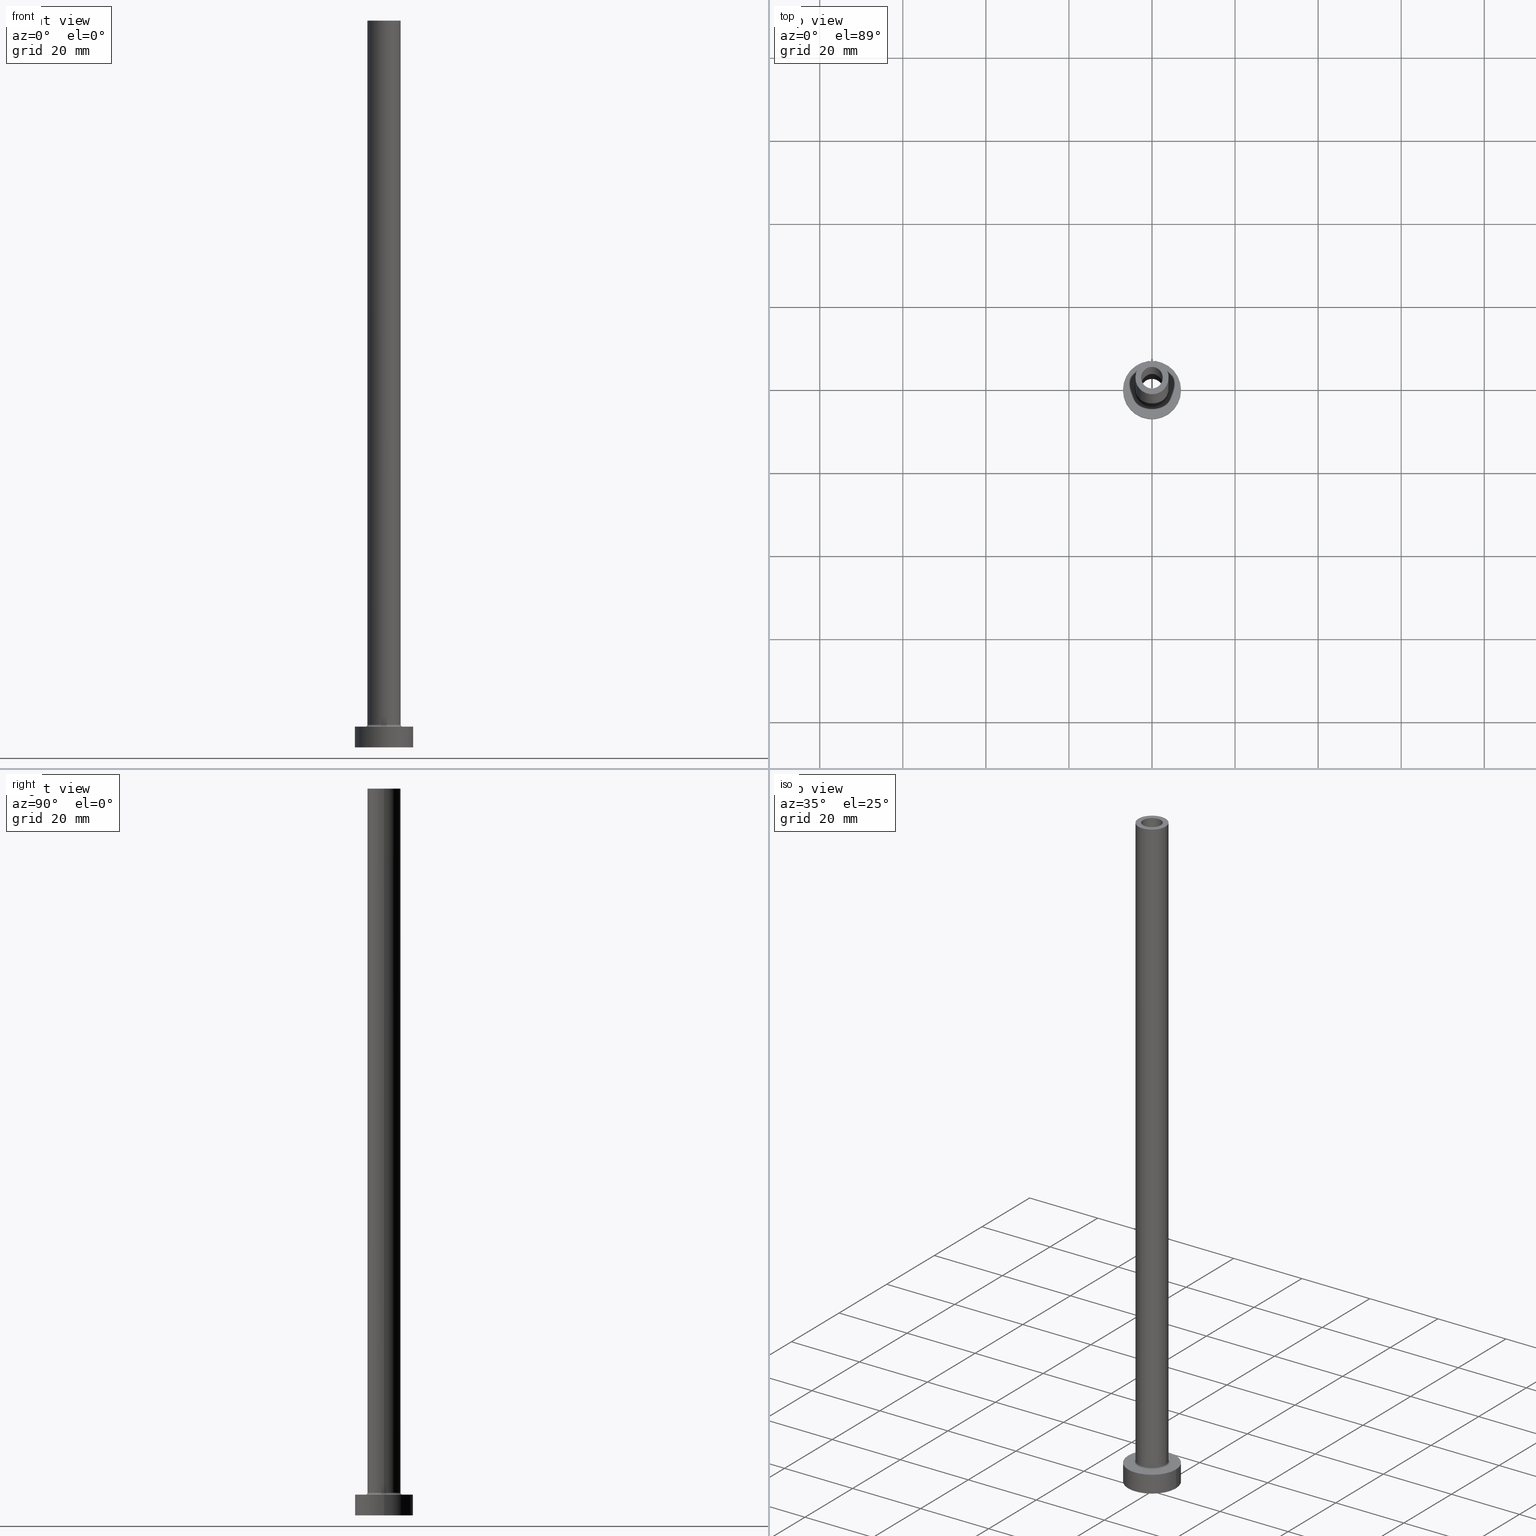
[diagram: canonical four-view strip — front | top / right | iso, engineering-drawing reading convention]
A machine part, canonical four-view strip (front | top / right | iso — engineering-drawing reading convention). The complete STEP part file that produces these views, byte-faithful:
ISO-10303-21;
HEADER;
FILE_DESCRIPTION (( 'STEP AP203' ),
    '1' );
FILE_NAME ('861e.STEP',
    '2023-02-13T10:11:23',
    ( '' ),
    ( '' ),
    'SwSTEP 2.0',
    'SolidWorks 2019',
    '' );
FILE_SCHEMA (( 'CONFIG_CONTROL_DESIGN' ));
ENDSEC;

DATA;
#1 = DIRECTION ( 'NONE',  ( 0.000000000000000000, 0.000000000000000000, -1.000000000000000000 ) ) ;
#2 = ADVANCED_FACE ( 'NONE', ( #11 ), #123, .T. ) ;
#3 = EDGE_LOOP ( 'NONE', ( #299, #56, #166, #332 ) ) ;
#4 = CARTESIAN_POINT ( 'NONE',  ( 4.000000000000000000, 4.898587196589412829E-16, 175.0000000000000284 ) ) ;
#5 = TOROIDAL_SURFACE ( 'NONE', #305, 4.500000000000000888, 0.5000000000000000000 ) ;
#6 = ORIENTED_EDGE ( 'NONE', *, *, #458, .T. ) ;
#7 = DIRECTION ( 'NONE',  ( 0.000000000000000000, 0.000000000000000000, 1.000000000000000000 ) ) ;
#8 = ORIENTED_EDGE ( 'NONE', *, *, #194, .T. ) ;
#9 = EDGE_CURVE ( 'NONE', #103, #228, #215, .T. ) ;
#10 = CARTESIAN_POINT ( 'NONE',  ( 0.000000000000000000, 0.000000000000000000, 5.000000000000000000 ) ) ;
#11 = FACE_OUTER_BOUND ( 'NONE', #432, .T. ) ;
#12 = VECTOR ( 'NONE', #369, 1000.000000000000000 ) ;
#13 = ORIENTED_EDGE ( 'NONE', *, *, #67, .T. ) ;
#14 = FACE_OUTER_BOUND ( 'NONE', #3, .T. ) ;
#15 = CYLINDRICAL_SURFACE ( 'NONE', #248, 2.750000000000000000 ) ;
#16 = ADVANCED_FACE ( 'NONE', ( #384 ), #5, .F. ) ;
#17 = APPROVAL_PERSON_ORGANIZATION ( #311, #268, #205 ) ;
#18 = CARTESIAN_POINT ( 'NONE',  ( -2.600000000000000089, 0.000000000000000000, 175.0000000000000284 ) ) ;
#19 = CARTESIAN_POINT ( 'NONE',  ( 0.000000000000000000, 0.000000000000000000, 130.0000000000000000 ) ) ;
#20 = DIRECTION ( 'NONE',  ( 1.224646799147353207E-16, 1.000000000000000000, -0.000000000000000000 ) ) ;
#21 = EDGE_CURVE ( 'NONE', #85, #201, #270, .T. ) ;
#22 = APPROVAL_STATUS ( 'not_yet_approved' ) ;
#23 = VERTEX_POINT ( 'NONE', #442 ) ;
#24 = CIRCLE ( 'NONE', #459, 2.750000000000000000 ) ;
#25 = AXIS2_PLACEMENT_3D ( 'NONE', #261, #330, #117 ) ;
#26 = DIRECTION ( 'NONE',  ( 0.000000000000000000, 0.000000000000000000, 1.000000000000000000 ) ) ;
#27 = ORIENTED_EDGE ( 'NONE', *, *, #185, .F. ) ;
#28 = PERSON_AND_ORGANIZATION_ROLE ( 'design_owner' ) ;
#29 = DIRECTION ( 'NONE',  ( 1.000000000000000000, 0.000000000000000000, 0.000000000000000000 ) ) ;
#30 = EDGE_CURVE ( 'NONE', #228, #23, #320, .T. ) ;
#31 = APPLICATION_PROTOCOL_DEFINITION ( 'international standard', 'config_control_design', 1994, #186 ) ;
#32 = DIRECTION ( 'NONE',  ( 1.000000000000000000, 0.000000000000000000, 0.000000000000000000 ) ) ;
#33 = AXIS2_PLACEMENT_3D ( 'NONE', #366, #264, #125 ) ;
#34 = ORIENTED_EDGE ( 'NONE', *, *, #218, .F. ) ;
#35 = CC_DESIGN_PERSON_AND_ORGANIZATION_ASSIGNMENT ( #317, #28, ( #60 ) ) ;
#36 = DIRECTION ( 'NONE',  ( 0.000000000000000000, 0.000000000000000000, 1.000000000000000000 ) ) ;
#37 = VERTEX_POINT ( 'NONE', #139 ) ;
#38 = FACE_OUTER_BOUND ( 'NONE', #208, .T. ) ;
#39 = VERTEX_POINT ( 'NONE', #137 ) ;
#40 = CARTESIAN_POINT ( 'NONE',  ( 0.000000000000000000, 0.000000000000000000, 0.000000000000000000 ) ) ;
#41 = CC_DESIGN_PERSON_AND_ORGANIZATION_ASSIGNMENT ( #344, #244, ( #393 ) ) ;
#42 = AXIS2_PLACEMENT_3D ( 'NONE', #64, #55, #271 ) ;
#43 = VECTOR ( 'NONE', #437, 1000.000000000000000 ) ;
#44 = FACE_OUTER_BOUND ( 'NONE', #388, .T. ) ;
#45 = LOCAL_TIME ( 11, 11, 23.00000000000000000, #132 ) ;
#46 = CARTESIAN_POINT ( 'NONE',  ( 0.000000000000000000, 0.000000000000000000, 130.0000000000000000 ) ) ;
#47 = ORIENTED_EDGE ( 'NONE', *, *, #9, .T. ) ;
#48 = FACE_OUTER_BOUND ( 'NONE', #80, .T. ) ;
#49 = CIRCLE ( 'NONE', #180, 7.000000000000000000 ) ;
#50 = ORIENTED_EDGE ( 'NONE', *, *, #433, .F. ) ;
#51 = EDGE_CURVE ( 'NONE', #225, #85, #231, .T. ) ;
#52 = DIRECTION ( 'NONE',  ( -0.000000000000000000, -0.000000000000000000, -1.000000000000000000 ) ) ;
#53 = CARTESIAN_POINT ( 'NONE',  ( -4.000000000000000000, 0.000000000000000000, 175.0000000000000284 ) ) ;
#54 = CARTESIAN_POINT ( 'NONE',  ( 0.000000000000000000, 0.000000000000000000, 5.000000000000000000 ) ) ;
#55 = DIRECTION ( 'NONE',  ( -0.000000000000000000, -0.000000000000000000, -1.000000000000000000 ) ) ;
#56 = ORIENTED_EDGE ( 'NONE', *, *, #250, .T. ) ;
#57 = DIRECTION ( 'NONE',  ( 0.000000000000000000, 0.000000000000000000, 1.000000000000000000 ) ) ;
#58 = CC_DESIGN_DATE_AND_TIME_ASSIGNMENT ( #207, #63, ( #393 ) ) ;
#59 = EDGE_LOOP ( 'NONE', ( #50, #65 ) ) ;
#60 = PRODUCT ( '861e', '861e', '', ( #100 ) ) ;
#61 = COORDINATED_UNIVERSAL_TIME_OFFSET ( 1, 0, .AHEAD. ) ;
#62 = ORIENTED_EDGE ( 'NONE', *, *, #451, .T. ) ;
#63 = DATE_TIME_ROLE ( 'classification_date' ) ;
#64 = CARTESIAN_POINT ( 'NONE',  ( 0.000000000000000000, 0.000000000000000000, 5.000000000000000000 ) ) ;
#65 = ORIENTED_EDGE ( 'NONE', *, *, #67, .F. ) ;
#66 = COORDINATED_UNIVERSAL_TIME_OFFSET ( 1, 0, .AHEAD. ) ;
#67 = EDGE_CURVE ( 'NONE', #70, #345, #452, .T. ) ;
#68 = AXIS2_PLACEMENT_3D ( 'NONE', #162, #300, #86 ) ;
#69 = CARTESIAN_POINT ( 'NONE',  ( 0.000000000000000000, 0.000000000000000000, 5.500000000000005329 ) ) ;
#70 = VERTEX_POINT ( 'NONE', #197 ) ;
#71 = APPROVAL_STATUS ( 'not_yet_approved' ) ;
#72 = FACE_OUTER_BOUND ( 'NONE', #454, .T. ) ;
#73 = AXIS2_PLACEMENT_3D ( 'NONE', #46, #198, #368 ) ;
#74 = ORIENTED_EDGE ( 'NONE', *, *, #308, .T. ) ;
#75 = CARTESIAN_POINT ( 'NONE',  ( -2.600000000000000089, 0.000000000000000000, 175.0000000000000284 ) ) ;
#76 = ORIENTED_EDGE ( 'NONE', *, *, #224, .T. ) ;
#77 = TOROIDAL_SURFACE ( 'NONE', #436, 4.500000000000000888, 0.5000000000000000000 ) ;
#78 = PLANE ( 'NONE',  #113 ) ;
#79 = DIRECTION ( 'NONE',  ( -0.000000000000000000, -0.000000000000000000, -1.000000000000000000 ) ) ;
#80 = EDGE_LOOP ( 'NONE', ( #238, #419 ) ) ;
#81 = LOCAL_TIME ( 11, 11, 23.00000000000000000, #61 ) ;
#82 = DIRECTION ( 'NONE',  ( -0.000000000000000000, -0.000000000000000000, -1.000000000000000000 ) ) ;
#83 = LINE ( 'NONE', #75, #216 ) ;
#84 = ADVANCED_FACE ( 'NONE', ( #130 ), #335, .F. ) ;
#85 = VERTEX_POINT ( 'NONE', #408 ) ;
#86 = DIRECTION ( 'NONE',  ( -1.000000000000000000, 0.000000000000000000, 0.000000000000000000 ) ) ;
#87 = DIRECTION ( 'NONE',  ( 0.000000000000000000, 0.000000000000000000, 1.000000000000000000 ) ) ;
#88 = AXIS2_PLACEMENT_3D ( 'NONE', #410, #97, #169 ) ;
#89 = DIRECTION ( 'NONE',  ( -1.000000000000000000, 1.224646799147351482E-16, 0.000000000000000000 ) ) ;
#90 = ADVANCED_FACE ( 'NONE', ( #161, #234 ), #386, .F. ) ;
#91 = ORIENTED_EDGE ( 'NONE', *, *, #199, .F. ) ;
#92 = FACE_OUTER_BOUND ( 'NONE', #303, .T. ) ;
#93 = CARTESIAN_POINT ( 'NONE',  ( -2.750000000000000000, 0.000000000000000000, 137.7781745930520287 ) ) ;
#94 = ORIENTED_EDGE ( 'NONE', *, *, #379, .T. ) ;
#95 = CARTESIAN_POINT ( 'NONE',  ( 0.000000000000000000, 0.000000000000000000, 130.0000000000000000 ) ) ;
#96 = ORIENTED_EDGE ( 'NONE', *, *, #141, .T. ) ;
#97 = DIRECTION ( 'NONE',  ( 0.000000000000000000, 0.000000000000000000, 1.000000000000000000 ) ) ;
#98 = CIRCLE ( 'NONE', #155, 7.000000000000000000 ) ;
#99 = AXIS2_PLACEMENT_3D ( 'NONE', #10, #292, #221 ) ;
#100 = MECHANICAL_CONTEXT ( 'NONE', #341, 'mechanical' ) ;
#101 = ORIENTED_EDGE ( 'NONE', *, *, #288, .F. ) ;
#102 = DIRECTION ( 'NONE',  ( 0.000000000000000000, 0.000000000000000000, 1.000000000000000000 ) ) ;
#103 = VERTEX_POINT ( 'NONE', #282 ) ;
#104 = APPROVAL_DATE_TIME ( #136, #173 ) ;
#105 = DIRECTION ( 'NONE',  ( -1.000000000000000000, 0.000000000000000000, 0.000000000000000000 ) ) ;
#106 = ORIENTED_EDGE ( 'NONE', *, *, #141, .F. ) ;
#107 = CIRCLE ( 'NONE', #427, 2.600000000000000089 ) ;
#108 = CARTESIAN_POINT ( 'NONE',  ( 0.000000000000000000, 0.000000000000000000, 137.7781745930520287 ) ) ;
#109 = DIRECTION ( 'NONE',  ( 1.000000000000000000, 0.000000000000000000, 0.000000000000000000 ) ) ;
#110 = ADVANCED_FACE ( 'NONE', ( #72 ), #302, .F. ) ;
#111 = CARTESIAN_POINT ( 'NONE',  ( 4.000000000000000000, 4.898587196589412829E-16, 5.500000000000005329 ) ) ;
#112 = VERTEX_POINT ( 'NONE', #245 ) ;
#113 = AXIS2_PLACEMENT_3D ( 'NONE', #181, #7, #254 ) ;
#114 = CARTESIAN_POINT ( 'NONE',  ( -2.600000000000000089, 0.000000000000000000, 130.0000000000000000 ) ) ;
#115 = AXIS2_PLACEMENT_3D ( 'NONE', #431, #192, #237 ) ;
#116 = ORIENTED_EDGE ( 'NONE', *, *, #30, .T. ) ;
#117 = DIRECTION ( 'NONE',  ( 1.000000000000000000, 0.000000000000000000, 0.000000000000000000 ) ) ;
#118 = EDGE_CURVE ( 'NONE', #260, #39, #285, .T. ) ;
#119 = DIRECTION ( 'NONE',  ( 0.000000000000000000, 0.000000000000000000, -1.000000000000000000 ) ) ;
#120 = CARTESIAN_POINT ( 'NONE',  ( 0.000000000000000000, 0.000000000000000000, 175.0000000000000284 ) ) ;
#121 = DESIGN_CONTEXT ( 'detailed design', #186, 'design' ) ;
#122 = CIRCLE ( 'NONE', #362, 4.000000000000000000 ) ;
#123 = CYLINDRICAL_SURFACE ( 'NONE', #33, 4.000000000000000000 ) ;
#124 = EDGE_CURVE ( 'NONE', #103, #375, #404, .T. ) ;
#125 = DIRECTION ( 'NONE',  ( -1.000000000000000000, 0.000000000000000000, 0.000000000000000000 ) ) ;
#126 = DIRECTION ( 'NONE',  ( 1.000000000000000000, 0.000000000000000000, 0.000000000000000000 ) ) ;
#127 = DIRECTION ( 'NONE',  ( -1.000000000000000000, 0.000000000000000000, 0.000000000000000000 ) ) ;
#128 = DIRECTION ( 'NONE',  ( 0.000000000000000000, 0.000000000000000000, -1.000000000000000000 ) ) ;
#129 = FACE_OUTER_BOUND ( 'NONE', #396, .T. ) ;
#130 = FACE_OUTER_BOUND ( 'NONE', #409, .T. ) ;
#131 = APPROVAL_ROLE ( '' ) ;
#132 = COORDINATED_UNIVERSAL_TIME_OFFSET ( 1, 0, .AHEAD. ) ;
#133 = EDGE_LOOP ( 'NONE', ( #312, #294, #212, #8 ) ) ;
#134 = PERSON_AND_ORGANIZATION ( #293, #343 ) ;
#135 = EDGE_CURVE ( 'NONE', #151, #171, #49, .T. ) ;
#136 = DATE_AND_TIME ( #276, #45 ) ;
#137 = CARTESIAN_POINT ( 'NONE',  ( 4.500000000000000888, 0.000000000000000000, 5.000000000000002665 ) ) ;
#138 = CIRCLE ( 'NONE', #73, 2.600000000000000089 ) ;
#139 = CARTESIAN_POINT ( 'NONE',  ( 4.000000000000000000, 4.898587196589412829E-16, 175.0000000000000284 ) ) ;
#140 = ORIENTED_EDGE ( 'NONE', *, *, #199, .T. ) ;
#141 = EDGE_CURVE ( 'NONE', #159, #112, #107, .T. ) ;
#142 = AXIS2_PLACEMENT_3D ( 'NONE', #307, #446, #273 ) ;
#143 = DIRECTION ( 'NONE',  ( 1.000000000000000000, 0.000000000000000000, 0.000000000000000000 ) ) ;
#144 = ORIENTED_EDGE ( 'NONE', *, *, #352, .T. ) ;
#145 = DIRECTION ( 'NONE',  ( 1.000000000000000000, 0.000000000000000000, 0.000000000000000000 ) ) ;
#146 = APPROVAL_PERSON_ORGANIZATION ( #349, #173, #376 ) ;
#147 = DIRECTION ( 'NONE',  ( -1.000000000000000000, 0.000000000000000000, 0.000000000000000000 ) ) ;
#148 = CARTESIAN_POINT ( 'NONE',  ( 0.000000000000000000, 0.000000000000000000, 5.500000000000005329 ) ) ;
#149 = EDGE_CURVE ( 'NONE', #267, #325, #361, .T. ) ;
#150 = CARTESIAN_POINT ( 'NONE',  ( 7.000000000000000000, 8.572527594031473190E-16, 5.000000000000000000 ) ) ;
#151 = VERTEX_POINT ( 'NONE', #347 ) ;
#152 = CC_DESIGN_APPROVAL ( #173, ( #281 ) ) ;
#153 = ADVANCED_FACE ( 'NONE', ( #44 ), #77, .F. ) ;
#154 = CARTESIAN_POINT ( 'NONE',  ( 0.000000000000000000, 0.000000000000000000, 175.0000000000000284 ) ) ;
#155 = AXIS2_PLACEMENT_3D ( 'NONE', #357, #222, #430 ) ;
#156 = AXIS2_PLACEMENT_3D ( 'NONE', #269, #403, #126 ) ;
#157 = ORIENTED_EDGE ( 'NONE', *, *, #51, .T. ) ;
#158 = CYLINDRICAL_SURFACE ( 'NONE', #68, 7.000000000000000000 ) ;
#159 = VERTEX_POINT ( 'NONE', #114 ) ;
#160 = DIRECTION ( 'NONE',  ( 0.000000000000000000, 0.000000000000000000, 1.000000000000000000 ) ) ;
#161 = FACE_BOUND ( 'NONE', #425, .T. ) ;
#162 = CARTESIAN_POINT ( 'NONE',  ( 0.000000000000000000, 0.000000000000000000, 5.000000000000000000 ) ) ;
#163 = CIRCLE ( 'NONE', #240, 4.000000000000000000 ) ;
#164 = DIRECTION ( 'NONE',  ( 1.000000000000000000, 0.000000000000000000, 0.000000000000000000 ) ) ;
#165 = PRODUCT_RELATED_PRODUCT_CATEGORY ( 'detail', '', ( #60 ) ) ;
#166 = ORIENTED_EDGE ( 'NONE', *, *, #124, .T. ) ;
#167 = CARTESIAN_POINT ( 'NONE',  ( -7.000000000000000000, 0.000000000000000000, 5.000000000000000000 ) ) ;
#168 = ORIENTED_EDGE ( 'NONE', *, *, #458, .F. ) ;
#169 = DIRECTION ( 'NONE',  ( 1.000000000000000000, 0.000000000000000000, 0.000000000000000000 ) ) ;
#170 = LOCAL_TIME ( 11, 11, 23.00000000000000000, #457 ) ;
#171 = VERTEX_POINT ( 'NONE', #189 ) ;
#172 = APPLICATION_PROTOCOL_DEFINITION ( 'international standard', 'config_control_design', 1994, #341 ) ;
#173 = APPROVAL ( #22, 'NEUR�EN�' ) ;
#174 = AXIS2_PLACEMENT_3D ( 'NONE', #95, #160, #441 ) ;
#175 = DIRECTION ( 'NONE',  ( 1.000000000000000000, 0.000000000000000000, 0.000000000000000000 ) ) ;
#176 = PERSON_AND_ORGANIZATION_ROLE ( 'creator' ) ;
#177 = CARTESIAN_POINT ( 'NONE',  ( 2.750000000000000000, 3.367778697655221012E-16, 137.7781745930520287 ) ) ;
#178 = CC_DESIGN_PERSON_AND_ORGANIZATION_ASSIGNMENT ( #310, #378, ( #281 ) ) ;
#179 = DIRECTION ( 'NONE',  ( 1.000000000000000000, 0.000000000000000000, -0.000000000000000000 ) ) ;
#180 = AXIS2_PLACEMENT_3D ( 'NONE', #371, #200, #382 ) ;
#181 = CARTESIAN_POINT ( 'NONE',  ( 0.000000000000000000, 0.000000000000000000, 175.0000000000000284 ) ) ;
#182 = ORIENTED_EDGE ( 'NONE', *, *, #428, .F. ) ;
#183 = CARTESIAN_POINT ( 'NONE',  ( -4.000000000000000000, 0.000000000000000000, 175.0000000000000284 ) ) ;
#184 = DIRECTION ( 'NONE',  ( 1.000000000000000000, 0.000000000000000000, 0.000000000000000000 ) ) ;
#185 = EDGE_CURVE ( 'NONE', #201, #85, #163, .T. ) ;
#186 = APPLICATION_CONTEXT ( 'configuration controlled 3d designs of mechanical parts and assemblies' ) ;
#187 = AXIS2_PLACEMENT_3D ( 'NONE', #69, #286, #175 ) ;
#188 = ADVANCED_BREP_SHAPE_REPRESENTATION ( '861e', ( #420, #88 ), #449 ) ;
#189 = CARTESIAN_POINT ( 'NONE',  ( -7.000000000000000000, 0.000000000000000000, 0.000000000000000000 ) ) ;
#190 = CIRCLE ( 'NONE', #204, 0.5000000000000004441 ) ;
#191 = ORIENTED_EDGE ( 'NONE', *, *, #21, .T. ) ;
#192 = DIRECTION ( 'NONE',  ( 0.000000000000000000, 0.000000000000000000, 1.000000000000000000 ) ) ;
#193 = ORIENTED_EDGE ( 'NONE', *, *, #149, .T. ) ;
#194 = EDGE_CURVE ( 'NONE', #171, #151, #314, .T. ) ;
#195 = ORIENTED_EDGE ( 'NONE', *, *, #218, .T. ) ;
#196 = CARTESIAN_POINT ( 'NONE',  ( 7.000000000000000000, 8.572527594031473190E-16, 5.000000000000000000 ) ) ;
#197 = CARTESIAN_POINT ( 'NONE',  ( 2.600000000000000089, 3.184081677783118191E-16, 175.0000000000000284 ) ) ;
#198 = DIRECTION ( 'NONE',  ( 0.000000000000000000, 0.000000000000000000, 1.000000000000000000 ) ) ;
#199 = EDGE_CURVE ( 'NONE', #325, #267, #98, .T. ) ;
#200 = DIRECTION ( 'NONE',  ( 0.000000000000000000, 0.000000000000000000, 1.000000000000000000 ) ) ;
#201 = VERTEX_POINT ( 'NONE', #111 ) ;
#202 = CARTESIAN_POINT ( 'NONE',  ( 4.500000000000000888, 0.000000000000000000, 5.500000000000005329 ) ) ;
#203 = CIRCLE ( 'NONE', #411, 2.750000000000000000 ) ;
#204 = AXIS2_PLACEMENT_3D ( 'NONE', #434, #20, #89 ) ;
#205 = APPROVAL_ROLE ( '' ) ;
#206 = ADVANCED_FACE ( 'NONE', ( #327, #395 ), #78, .T. ) ;
#207 = DATE_AND_TIME ( #280, #81 ) ;
#208 = EDGE_LOOP ( 'NONE', ( #91, #402, #444, #438 ) ) ;
#209 = DIRECTION ( 'NONE',  ( 0.000000000000000000, 0.000000000000000000, -1.000000000000000000 ) ) ;
#210 = AXIS2_PLACEMENT_3D ( 'NONE', #399, #87, #29 ) ;
#211 = DIRECTION ( 'NONE',  ( 0.000000000000000000, 0.000000000000000000, 1.000000000000000000 ) ) ;
#212 = ORIENTED_EDGE ( 'NONE', *, *, #387, .T. ) ;
#213 = CARTESIAN_POINT ( 'NONE',  ( 0.000000000000000000, 0.000000000000000000, 175.0000000000000284 ) ) ;
#214 = DIRECTION ( 'NONE',  ( 0.000000000000000000, 0.000000000000000000, 1.000000000000000000 ) ) ;
#215 = CIRCLE ( 'NONE', #210, 2.750000000000000000 ) ;
#216 = VECTOR ( 'NONE', #119, 1000.000000000000000 ) ;
#217 = DIRECTION ( 'NONE',  ( 1.000000000000000000, 0.000000000000000000, 0.000000000000000000 ) ) ;
#218 = EDGE_CURVE ( 'NONE', #23, #375, #203, .T. ) ;
#219 = FACE_OUTER_BOUND ( 'NONE', #279, .T. ) ;
#220 = CIRCLE ( 'NONE', #380, 0.5000000000000004441 ) ;
#221 = DIRECTION ( 'NONE',  ( -1.000000000000000000, 0.000000000000000000, 0.000000000000000000 ) ) ;
#222 = DIRECTION ( 'NONE',  ( 0.000000000000000000, 0.000000000000000000, 1.000000000000000000 ) ) ;
#223 = CIRCLE ( 'NONE', #156, 2.600000000000000089 ) ;
#224 = EDGE_CURVE ( 'NONE', #37, #201, #354, .T. ) ;
#225 = VERTEX_POINT ( 'NONE', #183 ) ;
#226 = PLANE ( 'NONE',  #322 ) ;
#227 = CARTESIAN_POINT ( 'NONE',  ( 0.000000000000000000, 0.000000000000000000, 137.7781745930520287 ) ) ;
#228 = VERTEX_POINT ( 'NONE', #324 ) ;
#229 =( NAMED_UNIT ( * ) SI_UNIT ( $, .STERADIAN. ) SOLID_ANGLE_UNIT ( ) );
#230 = VECTOR ( 'NONE', #82, 1000.000000000000000 ) ;
#231 = LINE ( 'NONE', #53, #12 ) ;
#232 = EDGE_CURVE ( 'NONE', #375, #23, #24, .T. ) ;
#233 = PLANE ( 'NONE',  #174 ) ;
#234 = FACE_OUTER_BOUND ( 'NONE', #309, .T. ) ;
#235 = ORIENTED_EDGE ( 'NONE', *, *, #328, .T. ) ;
#236 = LOCAL_TIME ( 11, 11, 23.00000000000000000, #66 ) ;
#237 = DIRECTION ( 'NONE',  ( 1.000000000000000000, 0.000000000000000000, 0.000000000000000000 ) ) ;
#238 = ORIENTED_EDGE ( 'NONE', *, *, #9, .F. ) ;
#239 = APPROVAL_DATE_TIME ( #313, #268 ) ;
#240 = AXIS2_PLACEMENT_3D ( 'NONE', #148, #36, #363 ) ;
#241 = AXIS2_PLACEMENT_3D ( 'NONE', #252, #1, #147 ) ;
#242 = PERSON_AND_ORGANIZATION_ROLE ( 'creator' ) ;
#243 = DIRECTION ( 'NONE',  ( 1.000000000000000000, 0.000000000000000000, 0.000000000000000000 ) ) ;
#244 = PERSON_AND_ORGANIZATION_ROLE ( 'classification_officer' ) ;
#245 = CARTESIAN_POINT ( 'NONE',  ( 2.600000000000000089, 3.184081677783118191E-16, 130.0000000000000000 ) ) ;
#246 = AXIS2_PLACEMENT_3D ( 'NONE', #284, #102, #179 ) ;
#247 = ORIENTED_EDGE ( 'NONE', *, *, #308, .F. ) ;
#248 = AXIS2_PLACEMENT_3D ( 'NONE', #227, #373, #298 ) ;
#249 = APPROVAL_STATUS ( 'not_yet_approved' ) ;
#250 = EDGE_CURVE ( 'NONE', #228, #103, #263, .T. ) ;
#251 = DIRECTION ( 'NONE',  ( 0.000000000000000000, 0.000000000000000000, -1.000000000000000000 ) ) ;
#252 = CARTESIAN_POINT ( 'NONE',  ( 0.000000000000000000, 0.000000000000000000, 175.0000000000000284 ) ) ;
#253 = CC_DESIGN_APPROVAL ( #268, ( #255 ) ) ;
#254 = DIRECTION ( 'NONE',  ( 1.000000000000000000, 0.000000000000000000, -0.000000000000000000 ) ) ;
#255 = PRODUCT_DEFINITION ( 'NEZN�M�', '', #281, #121 ) ;
#256 = ORIENTED_EDGE ( 'NONE', *, *, #135, .F. ) ;
#257 = VECTOR ( 'NONE', #209, 1000.000000000000000 ) ;
#258 = CARTESIAN_POINT ( 'NONE',  ( -7.000000000000000000, 0.000000000000000000, 5.000000000000000000 ) ) ;
#259 = APPROVAL_PERSON_ORGANIZATION ( #134, #421, #131 ) ;
#260 = VERTEX_POINT ( 'NONE', #426 ) ;
#261 = CARTESIAN_POINT ( 'NONE',  ( 0.000000000000000000, 0.000000000000000000, 5.000000000000000000 ) ) ;
#262 = FACE_BOUND ( 'NONE', #348, .T. ) ;
#263 = CIRCLE ( 'NONE', #460, 2.750000000000000000 ) ;
#264 = DIRECTION ( 'NONE',  ( -0.000000000000000000, -0.000000000000000000, -1.000000000000000000 ) ) ;
#265 =( NAMED_UNIT ( * ) PLANE_ANGLE_UNIT ( ) SI_UNIT ( $, .RADIAN. ) );
#266 = DIRECTION ( 'NONE',  ( 0.000000000000000000, 0.000000000000000000, 1.000000000000000000 ) ) ;
#267 = VERTEX_POINT ( 'NONE', #258 ) ;
#268 = APPROVAL ( #71, 'NEUR�EN�' ) ;
#269 = CARTESIAN_POINT ( 'NONE',  ( 0.000000000000000000, 0.000000000000000000, 175.0000000000000284 ) ) ;
#270 = CIRCLE ( 'NONE', #187, 4.000000000000000000 ) ;
#271 = DIRECTION ( 'NONE',  ( 1.000000000000000000, 0.000000000000000000, 0.000000000000000000 ) ) ;
#272 = FACE_BOUND ( 'NONE', #291, .T. ) ;
#273 = DIRECTION ( 'NONE',  ( 1.000000000000000000, 0.000000000000000000, 0.000000000000000000 ) ) ;
#274 = ORIENTED_EDGE ( 'NONE', *, *, #451, .F. ) ;
#275 = DATE_AND_TIME ( #278, #236 ) ;
#276 = CALENDAR_DATE ( 2023, 13, 2 ) ;
#277 = ORIENTED_EDGE ( 'NONE', *, *, #194, .F. ) ;
#278 = CALENDAR_DATE ( 2023, 13, 2 ) ;
#279 = EDGE_LOOP ( 'NONE', ( #391, #94, #106, #247 ) ) ;
#280 = CALENDAR_DATE ( 2023, 13, 2 ) ;
#281 = PRODUCT_DEFINITION_FORMATION_WITH_SPECIFIED_SOURCE ( 'LIBOVOLN�', '', #60, .NOT_KNOWN. ) ;
#282 = CARTESIAN_POINT ( 'NONE',  ( -2.750000000000000000, 0.000000000000000000, 130.0000000000000000 ) ) ;
#283 = ADVANCED_FACE ( 'NONE', ( #219 ), #287, .F. ) ;
#284 = CARTESIAN_POINT ( 'NONE',  ( 0.000000000000000000, 0.000000000000000000, 0.000000000000000000 ) ) ;
#285 = CIRCLE ( 'NONE', #42, 4.500000000000000888 ) ;
#286 = DIRECTION ( 'NONE',  ( 0.000000000000000000, 0.000000000000000000, 1.000000000000000000 ) ) ;
#287 = CYLINDRICAL_SURFACE ( 'NONE', #241, 2.600000000000000089 ) ;
#288 = EDGE_CURVE ( 'NONE', #39, #260, #412, .T. ) ;
#289 = EDGE_LOOP ( 'NONE', ( #338, #27, #62, #415 ) ) ;
#290 = CARTESIAN_POINT ( 'NONE',  ( 0.000000000000000000, 0.000000000000000000, 130.0000000000000000 ) ) ;
#291 = EDGE_LOOP ( 'NONE', ( #96, #6 ) ) ;
#292 = DIRECTION ( 'NONE',  ( -0.000000000000000000, -0.000000000000000000, -1.000000000000000000 ) ) ;
#293 = PERSON ( 'NEUR�EN�', 'NEUR�EN�', 'NEUR�EN�', ('NEUR�EN�'), ('NEUR�EN�'), ('NEUR�EN�') ) ;
#294 = ORIENTED_EDGE ( 'NONE', *, *, #149, .F. ) ;
#295 = CARTESIAN_POINT ( 'NONE',  ( 0.000000000000000000, 0.000000000000000000, 5.500000000000005329 ) ) ;
#296 = UNCERTAINTY_MEASURE_WITH_UNIT (LENGTH_MEASURE( 1.000000000000000082E-05 ), #331, 'distance_accuracy_value', 'NONE');
#297 = CLOSED_SHELL ( 'NONE', ( #283, #84, #153, #333, #319, #346, #443, #90, #2, #206, #16, #367, #406, #110 ) ) ;
#298 = DIRECTION ( 'NONE',  ( -1.000000000000000000, 0.000000000000000000, 0.000000000000000000 ) ) ;
#299 = ORIENTED_EDGE ( 'NONE', *, *, #30, .F. ) ;
#300 = DIRECTION ( 'NONE',  ( -0.000000000000000000, -0.000000000000000000, -1.000000000000000000 ) ) ;
#301 = FACE_OUTER_BOUND ( 'NONE', #133, .T. ) ;
#302 = CYLINDRICAL_SURFACE ( 'NONE', #340, 2.600000000000000089 ) ;
#303 = EDGE_LOOP ( 'NONE', ( #193, #140 ) ) ;
#304 = CARTESIAN_POINT ( 'NONE',  ( -2.750000000000000000, 0.000000000000000000, 0.000000000000000000 ) ) ;
#305 = AXIS2_PLACEMENT_3D ( 'NONE', #350, #423, #143 ) ;
#306 = VECTOR ( 'NONE', #336, 1000.000000000000000 ) ;
#307 = CARTESIAN_POINT ( 'NONE',  ( 0.000000000000000000, 0.000000000000000000, 5.000000000000000000 ) ) ;
#308 = EDGE_CURVE ( 'NONE', #345, #159, #83, .T. ) ;
#309 = EDGE_LOOP ( 'NONE', ( #277, #256 ) ) ;
#310 = PERSON_AND_ORGANIZATION ( #293, #343 ) ;
#311 = PERSON_AND_ORGANIZATION ( #293, #343 ) ;
#312 = ORIENTED_EDGE ( 'NONE', *, *, #337, .F. ) ;
#313 = DATE_AND_TIME ( #450, #440 ) ;
#314 = CIRCLE ( 'NONE', #397, 7.000000000000000000 ) ;
#315 = CIRCLE ( 'NONE', #115, 4.000000000000000000 ) ;
#316 = ORIENTED_EDGE ( 'NONE', *, *, #118, .T. ) ;
#317 = PERSON_AND_ORGANIZATION ( #293, #343 ) ;
#318 = CARTESIAN_POINT ( 'NONE',  ( 0.000000000000000000, 0.000000000000000000, 175.0000000000000284 ) ) ;
#319 = ADVANCED_FACE ( 'NONE', ( #38 ), #326, .T. ) ;
#320 = LINE ( 'NONE', #177, #377 ) ;
#321 = AXIS2_PLACEMENT_3D ( 'NONE', #318, #211, #243 ) ;
#322 = AXIS2_PLACEMENT_3D ( 'NONE', #54, #57, #401 ) ;
#323 = DIRECTION ( 'NONE',  ( 0.000000000000000000, 0.000000000000000000, 1.000000000000000000 ) ) ;
#324 = CARTESIAN_POINT ( 'NONE',  ( 2.750000000000000000, 3.367778697655221012E-16, 130.0000000000000000 ) ) ;
#325 = VERTEX_POINT ( 'NONE', #150 ) ;
#326 = CYLINDRICAL_SURFACE ( 'NONE', #99, 7.000000000000000000 ) ;
#327 = FACE_BOUND ( 'NONE', #59, .T. ) ;
#328 = EDGE_CURVE ( 'NONE', #225, #37, #315, .T. ) ;
#329 = ORIENTED_EDGE ( 'NONE', *, *, #124, .F. ) ;
#330 = DIRECTION ( 'NONE',  ( -0.000000000000000000, -0.000000000000000000, -1.000000000000000000 ) ) ;
#331 =( LENGTH_UNIT ( ) NAMED_UNIT ( * ) SI_UNIT ( .MILLI., .METRE. ) );
#332 = ORIENTED_EDGE ( 'NONE', *, *, #232, .T. ) ;
#333 = ADVANCED_FACE ( 'NONE', ( #129 ), #334, .T. ) ;
#334 = CYLINDRICAL_SURFACE ( 'NONE', #413, 4.000000000000000000 ) ;
#335 = CYLINDRICAL_SURFACE ( 'NONE', #385, 2.750000000000000000 ) ;
#336 = DIRECTION ( 'NONE',  ( -0.000000000000000000, -0.000000000000000000, -1.000000000000000000 ) ) ;
#337 = EDGE_CURVE ( 'NONE', #325, #151, #407, .T. ) ;
#338 = ORIENTED_EDGE ( 'NONE', *, *, #352, .F. ) ;
#339 = DIRECTION ( 'NONE',  ( 0.000000000000000000, -1.000000000000000000, 0.000000000000000000 ) ) ;
#340 = AXIS2_PLACEMENT_3D ( 'NONE', #213, #128, #418 ) ;
#341 = APPLICATION_CONTEXT ( 'configuration controlled 3d designs of mechanical parts and assemblies' ) ;
#342 = COORDINATED_UNIVERSAL_TIME_OFFSET ( 1, 0, .AHEAD. ) ;
#343 = ORGANIZATION ( 'NEUR�EN�', 'NEUR�EN�', '' ) ;
#344 = PERSON_AND_ORGANIZATION ( #293, #343 ) ;
#345 = VERTEX_POINT ( 'NONE', #18 ) ;
#346 = ADVANCED_FACE ( 'NONE', ( #301 ), #158, .T. ) ;
#347 = CARTESIAN_POINT ( 'NONE',  ( 7.000000000000000000, 8.572527594031473190E-16, 0.000000000000000000 ) ) ;
#348 = EDGE_LOOP ( 'NONE', ( #353, #316 ) ) ;
#349 = PERSON_AND_ORGANIZATION ( #293, #343 ) ;
#350 = CARTESIAN_POINT ( 'NONE',  ( 0.000000000000000000, 0.000000000000000000, 5.500000000000005329 ) ) ;
#351 = CALENDAR_DATE ( 2023, 13, 2 ) ;
#352 = EDGE_CURVE ( 'NONE', #85, #260, #190, .T. ) ;
#353 = ORIENTED_EDGE ( 'NONE', *, *, #288, .T. ) ;
#354 = LINE ( 'NONE', #4, #230 ) ;
#355 = ORIENTED_EDGE ( 'NONE', *, *, #51, .F. ) ;
#356 = VECTOR ( 'NONE', #398, 1000.000000000000000 ) ;
#357 = CARTESIAN_POINT ( 'NONE',  ( 0.000000000000000000, 0.000000000000000000, 5.000000000000000000 ) ) ;
#358 = ORIENTED_EDGE ( 'NONE', *, *, #428, .T. ) ;
#359 = CARTESIAN_POINT ( 'NONE',  ( 0.000000000000000000, 0.000000000000000000, 0.000000000000000000 ) ) ;
#360 = CC_DESIGN_PERSON_AND_ORGANIZATION_ASSIGNMENT ( #417, #242, ( #281 ) ) ;
#361 = CIRCLE ( 'NONE', #142, 7.000000000000000000 ) ;
#362 = AXIS2_PLACEMENT_3D ( 'NONE', #120, #266, #370 ) ;
#363 = DIRECTION ( 'NONE',  ( 1.000000000000000000, 0.000000000000000000, 0.000000000000000000 ) ) ;
#364 = ORIENTED_EDGE ( 'NONE', *, *, #224, .F. ) ;
#365 = LINE ( 'NONE', #445, #43 ) ;
#366 = CARTESIAN_POINT ( 'NONE',  ( 0.000000000000000000, 0.000000000000000000, 175.0000000000000284 ) ) ;
#367 = ADVANCED_FACE ( 'NONE', ( #14 ), #15, .F. ) ;
#368 = DIRECTION ( 'NONE',  ( 1.000000000000000000, 0.000000000000000000, 0.000000000000000000 ) ) ;
#369 = DIRECTION ( 'NONE',  ( -0.000000000000000000, -0.000000000000000000, -1.000000000000000000 ) ) ;
#370 = DIRECTION ( 'NONE',  ( 1.000000000000000000, 0.000000000000000000, 0.000000000000000000 ) ) ;
#371 = CARTESIAN_POINT ( 'NONE',  ( 0.000000000000000000, 0.000000000000000000, 0.000000000000000000 ) ) ;
#372 = CC_DESIGN_APPROVAL ( #421, ( #393 ) ) ;
#373 = DIRECTION ( 'NONE',  ( 0.000000000000000000, 0.000000000000000000, -1.000000000000000000 ) ) ;
#374 = CC_DESIGN_DATE_AND_TIME_ASSIGNMENT ( #455, #453, ( #255 ) ) ;
#375 = VERTEX_POINT ( 'NONE', #304 ) ;
#376 = APPROVAL_ROLE ( '' ) ;
#377 = VECTOR ( 'NONE', #424, 1000.000000000000000 ) ;
#378 = PERSON_AND_ORGANIZATION_ROLE ( 'design_supplier' ) ;
#379 = EDGE_CURVE ( 'NONE', #70, #112, #365, .T. ) ;
#380 = AXIS2_PLACEMENT_3D ( 'NONE', #202, #339, #400 ) ;
#381 = PERSON_AND_ORGANIZATION ( #293, #343 ) ;
#382 = DIRECTION ( 'NONE',  ( 1.000000000000000000, 0.000000000000000000, 0.000000000000000000 ) ) ;
#383 = PRODUCT_DEFINITION_SHAPE ( 'NONE', 'NONE',  #255 ) ;
#384 = FACE_OUTER_BOUND ( 'NONE', #289, .T. ) ;
#385 = AXIS2_PLACEMENT_3D ( 'NONE', #108, #251, #105 ) ;
#386 = PLANE ( 'NONE',  #246 ) ;
#387 = EDGE_CURVE ( 'NONE', #267, #171, #439, .T. ) ;
#388 = EDGE_LOOP ( 'NONE', ( #435, #144, #101, #274 ) ) ;
#389 = DIRECTION ( 'NONE',  ( -0.000000000000000000, -0.000000000000000000, -1.000000000000000000 ) ) ;
#390 = CARTESIAN_POINT ( 'NONE',  ( 0.000000000000000000, 0.000000000000000000, 0.000000000000000000 ) ) ;
#391 = ORIENTED_EDGE ( 'NONE', *, *, #433, .T. ) ;
#392 = DIRECTION ( 'NONE',  ( 0.000000000000000000, 0.000000000000000000, 1.000000000000000000 ) ) ;
#393 = SECURITY_CLASSIFICATION ( '', '', #448 ) ;
#394 = ORIENTED_EDGE ( 'NONE', *, *, #379, .F. ) ;
#395 = FACE_OUTER_BOUND ( 'NONE', #429, .T. ) ;
#396 = EDGE_LOOP ( 'NONE', ( #182, #76, #461, #355 ) ) ;
#397 = AXIS2_PLACEMENT_3D ( 'NONE', #359, #392, #145 ) ;
#398 = DIRECTION ( 'NONE',  ( -0.000000000000000000, -0.000000000000000000, -1.000000000000000000 ) ) ;
#399 = CARTESIAN_POINT ( 'NONE',  ( 0.000000000000000000, 0.000000000000000000, 130.0000000000000000 ) ) ;
#400 = DIRECTION ( 'NONE',  ( 0.000000000000000000, 0.000000000000000000, -1.000000000000000000 ) ) ;
#401 = DIRECTION ( 'NONE',  ( 1.000000000000000000, 0.000000000000000000, -0.000000000000000000 ) ) ;
#402 = ORIENTED_EDGE ( 'NONE', *, *, #337, .T. ) ;
#403 = DIRECTION ( 'NONE',  ( 0.000000000000000000, 0.000000000000000000, 1.000000000000000000 ) ) ;
#404 = LINE ( 'NONE', #93, #257 ) ;
#405 = ORIENTED_EDGE ( 'NONE', *, *, #232, .F. ) ;
#406 = ADVANCED_FACE ( 'NONE', ( #272, #48 ), #233, .F. ) ;
#407 = LINE ( 'NONE', #196, #356 ) ;
#408 = CARTESIAN_POINT ( 'NONE',  ( -4.000000000000000000, 0.000000000000000000, 5.500000000000005329 ) ) ;
#409 = EDGE_LOOP ( 'NONE', ( #47, #116, #195, #329 ) ) ;
#410 = CARTESIAN_POINT ( 'NONE',  ( 0.000000000000000000, 0.000000000000000000, 0.000000000000000000 ) ) ;
#411 = AXIS2_PLACEMENT_3D ( 'NONE', #390, #389, #109 ) ;
#412 = CIRCLE ( 'NONE', #25, 4.500000000000000888 ) ;
#413 = AXIS2_PLACEMENT_3D ( 'NONE', #154, #52, #127 ) ;
#414 = CC_DESIGN_PERSON_AND_ORGANIZATION_ASSIGNMENT ( #381, #176, ( #255 ) ) ;
#415 = ORIENTED_EDGE ( 'NONE', *, *, #118, .F. ) ;
#416 = APPROVAL_DATE_TIME ( #275, #421 ) ;
#417 = PERSON_AND_ORGANIZATION ( #293, #343 ) ;
#418 = DIRECTION ( 'NONE',  ( -1.000000000000000000, 0.000000000000000000, 0.000000000000000000 ) ) ;
#419 = ORIENTED_EDGE ( 'NONE', *, *, #250, .F. ) ;
#420 = MANIFOLD_SOLID_BREP ( 'Odebrat vysunut�m4', #297 ) ;
#421 = APPROVAL ( #249, 'NEUR�EN�' ) ;
#422 = SHAPE_DEFINITION_REPRESENTATION ( #383, #188 ) ;
#423 = DIRECTION ( 'NONE',  ( 0.000000000000000000, 0.000000000000000000, 1.000000000000000000 ) ) ;
#424 = DIRECTION ( 'NONE',  ( 0.000000000000000000, 0.000000000000000000, -1.000000000000000000 ) ) ;
#425 = EDGE_LOOP ( 'NONE', ( #405, #34 ) ) ;
#426 = CARTESIAN_POINT ( 'NONE',  ( -4.500000000000000888, 5.510910596163088569E-16, 5.000000000000002665 ) ) ;
#427 = AXIS2_PLACEMENT_3D ( 'NONE', #19, #26, #164 ) ;
#428 = EDGE_CURVE ( 'NONE', #37, #225, #122, .T. ) ;
#429 = EDGE_LOOP ( 'NONE', ( #235, #358 ) ) ;
#430 = DIRECTION ( 'NONE',  ( 1.000000000000000000, 0.000000000000000000, 0.000000000000000000 ) ) ;
#431 = CARTESIAN_POINT ( 'NONE',  ( 0.000000000000000000, 0.000000000000000000, 175.0000000000000284 ) ) ;
#432 = EDGE_LOOP ( 'NONE', ( #364, #447, #157, #191 ) ) ;
#433 = EDGE_CURVE ( 'NONE', #345, #70, #223, .T. ) ;
#434 = CARTESIAN_POINT ( 'NONE',  ( -4.500000000000000888, 5.510910596163089556E-16, 5.500000000000005329 ) ) ;
#435 = ORIENTED_EDGE ( 'NONE', *, *, #21, .F. ) ;
#436 = AXIS2_PLACEMENT_3D ( 'NONE', #295, #323, #217 ) ;
#437 = DIRECTION ( 'NONE',  ( 0.000000000000000000, 0.000000000000000000, -1.000000000000000000 ) ) ;
#438 = ORIENTED_EDGE ( 'NONE', *, *, #387, .F. ) ;
#439 = LINE ( 'NONE', #167, #306 ) ;
#440 = LOCAL_TIME ( 11, 11, 23.00000000000000000, #342 ) ;
#441 = DIRECTION ( 'NONE',  ( 1.000000000000000000, 0.000000000000000000, -0.000000000000000000 ) ) ;
#442 = CARTESIAN_POINT ( 'NONE',  ( 2.750000000000000000, 3.367778697655221012E-16, 0.000000000000000000 ) ) ;
#443 = ADVANCED_FACE ( 'NONE', ( #262, #92 ), #226, .T. ) ;
#444 = ORIENTED_EDGE ( 'NONE', *, *, #135, .T. ) ;
#445 = CARTESIAN_POINT ( 'NONE',  ( 2.600000000000000089, 3.184081677783118191E-16, 175.0000000000000284 ) ) ;
#446 = DIRECTION ( 'NONE',  ( 0.000000000000000000, 0.000000000000000000, 1.000000000000000000 ) ) ;
#447 = ORIENTED_EDGE ( 'NONE', *, *, #328, .F. ) ;
#448 = SECURITY_CLASSIFICATION_LEVEL ( 'unclassified' ) ;
#449 =( GEOMETRIC_REPRESENTATION_CONTEXT ( 3 ) GLOBAL_UNCERTAINTY_ASSIGNED_CONTEXT ( ( #296 ) ) GLOBAL_UNIT_ASSIGNED_CONTEXT ( ( #331, #265, #229 ) ) REPRESENTATION_CONTEXT ( 'NONE', 'WORKASPACE' ) );
#450 = CALENDAR_DATE ( 2023, 13, 2 ) ;
#451 = EDGE_CURVE ( 'NONE', #201, #39, #220, .T. ) ;
#452 = CIRCLE ( 'NONE', #321, 2.600000000000000089 ) ;
#453 = DATE_TIME_ROLE ( 'creation_date' ) ;
#454 = EDGE_LOOP ( 'NONE', ( #394, #13, #74, #168 ) ) ;
#455 = DATE_AND_TIME ( #351, #170 ) ;
#456 = CC_DESIGN_SECURITY_CLASSIFICATION ( #393, ( #281 ) ) ;
#457 = COORDINATED_UNIVERSAL_TIME_OFFSET ( 1, 0, .AHEAD. ) ;
#458 = EDGE_CURVE ( 'NONE', #112, #159, #138, .T. ) ;
#459 = AXIS2_PLACEMENT_3D ( 'NONE', #40, #79, #184 ) ;
#460 = AXIS2_PLACEMENT_3D ( 'NONE', #290, #214, #32 ) ;
#461 = ORIENTED_EDGE ( 'NONE', *, *, #185, .T. ) ;
ENDSEC;
END-ISO-10303-21;
